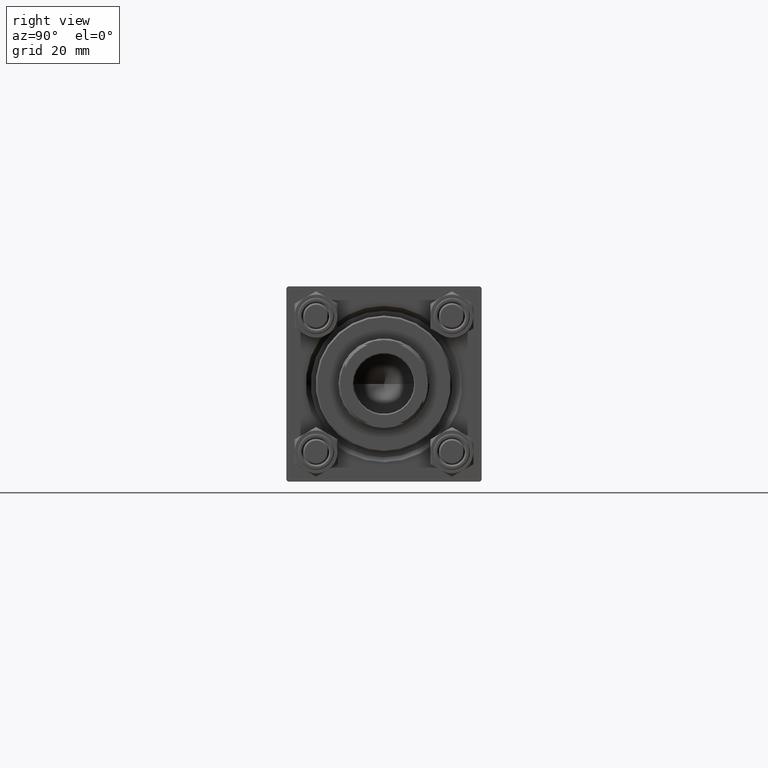
[diagram: clean part render]
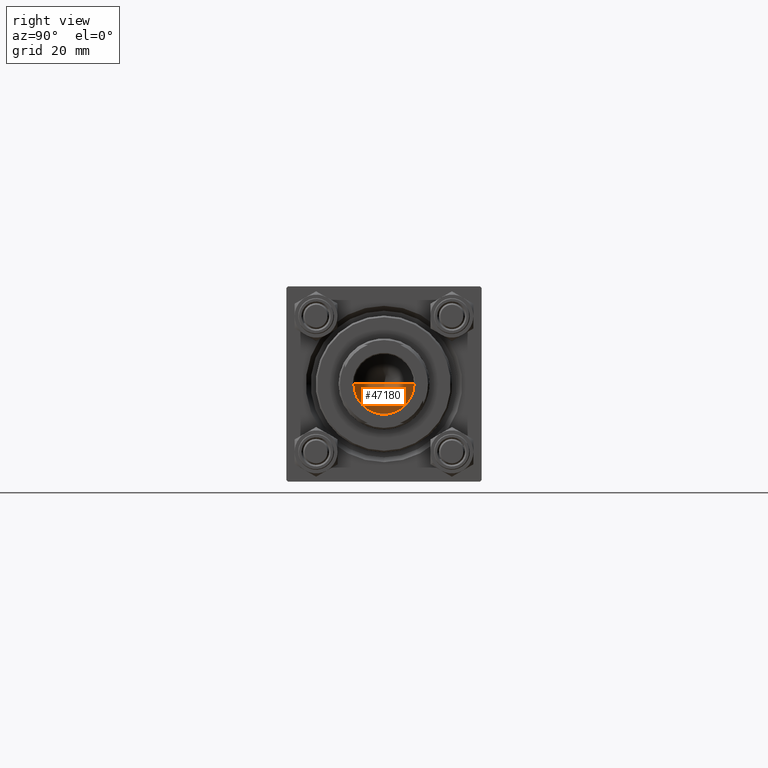
[diagram: same view with one face highlighted and labeled with its STEP entity id]
A machine part, right view. The second image highlights one B-rep face of the part: STEP entity #47180.
In plain terms, the highlighted conical surface has half-angle 59 deg.
Its self-contained STEP definition (entity closure, byte-faithful):
#2927 = VERTEX_POINT ( 'NONE', #36810 ) ;
#3087 = CARTESIAN_POINT ( 'NONE',  ( -9.249999999999992895, 1.132798289211300712E-15, 101.0000000000000000 ) ) ;
#5338 = DIRECTION ( 'NONE',  ( 1.000000000000000000, 0.000000000000000000, 0.000000000000000000 ) ) ;
#7917 = EDGE_CURVE ( 'NONE', #24525, #11021, #22109, .T. ) ;
#10738 = VECTOR ( 'NONE', #15915, 1000.000000000000000 ) ;
#11021 = VERTEX_POINT ( 'NONE', #3087 ) ;
#11251 = DIRECTION ( 'NONE',  ( -0.8571673007021117785, 1.049727191138617956E-16, 0.5150380749100550437 ) ) ;
#11370 = DIRECTION ( 'NONE',  ( 1.000000000000000000, 0.000000000000000000, 0.000000000000000000 ) ) ;
#12621 = AXIS2_PLACEMENT_3D ( 'NONE', #39907, #32345, #5338 ) ;
#13909 = EDGE_CURVE ( 'NONE', #2927, #24525, #23488, .T. ) ;
#14529 = CARTESIAN_POINT ( 'NONE',  ( -9.249999999999992895, 1.132798289211300712E-15, 101.0000000000000000 ) ) ;
#14646 = CARTESIAN_POINT ( 'NONE',  ( 0.000000000000000000, 0.000000000000000000, 101.0000000000000000 ) ) ;
#15915 = DIRECTION ( 'NONE',  ( 0.8571673007021117785, 0.000000000000000000, 0.5150380749100550437 ) ) ;
#22109 = CIRCLE ( 'NONE', #12621, 9.249999999999992895 ) ;
#23488 = LINE ( 'NONE', #34849, #10738 ) ;
#24144 = EDGE_CURVE ( 'NONE', #2927, #11021, #37996, .T. ) ;
#24525 = VERTEX_POINT ( 'NONE', #30381 ) ;
#24866 = AXIS2_PLACEMENT_3D ( 'NONE', #14646, #34344, #11370 ) ;
#27218 = VECTOR ( 'NONE', #11251, 1000.000000000000000 ) ;
#27382 = EDGE_LOOP ( 'NONE', ( #35441, #27816, #42689 ) ) ;
#27816 = ORIENTED_EDGE ( 'NONE', *, *, #13909, .T. ) ;
#30306 = FACE_OUTER_BOUND ( 'NONE', #27382, .T. ) ;
#30381 = CARTESIAN_POINT ( 'NONE',  ( 9.249999999999992895, 0.000000000000000000, 101.0000000000000000 ) ) ;
#32345 = DIRECTION ( 'NONE',  ( -0.000000000000000000, -0.000000000000000000, 1.000000000000000000 ) ) ;
#34344 = DIRECTION ( 'NONE',  ( -0.000000000000000000, -0.000000000000000000, 1.000000000000000000 ) ) ;
#34849 = CARTESIAN_POINT ( 'NONE',  ( 9.249999999999992895, 0.000000000000000000, 101.0000000000000000 ) ) ;
#35441 = ORIENTED_EDGE ( 'NONE', *, *, #24144, .F. ) ;
#36810 = CARTESIAN_POINT ( 'NONE',  ( -9.769621978240258809E-15, 0.000000000000000000, 95.44203927399506426 ) ) ;
#37737 = CONICAL_SURFACE ( 'NONE', #24866, 9.249999999999992895, 1.029744258676653423 ) ;
#37996 = LINE ( 'NONE', #14529, #27218 ) ;
#39907 = CARTESIAN_POINT ( 'NONE',  ( 0.000000000000000000, 0.000000000000000000, 101.0000000000000000 ) ) ;
#42689 = ORIENTED_EDGE ( 'NONE', *, *, #7917, .T. ) ;
#47180 = ADVANCED_FACE ( 'NONE', ( #30306 ), #37737, .F. ) ;